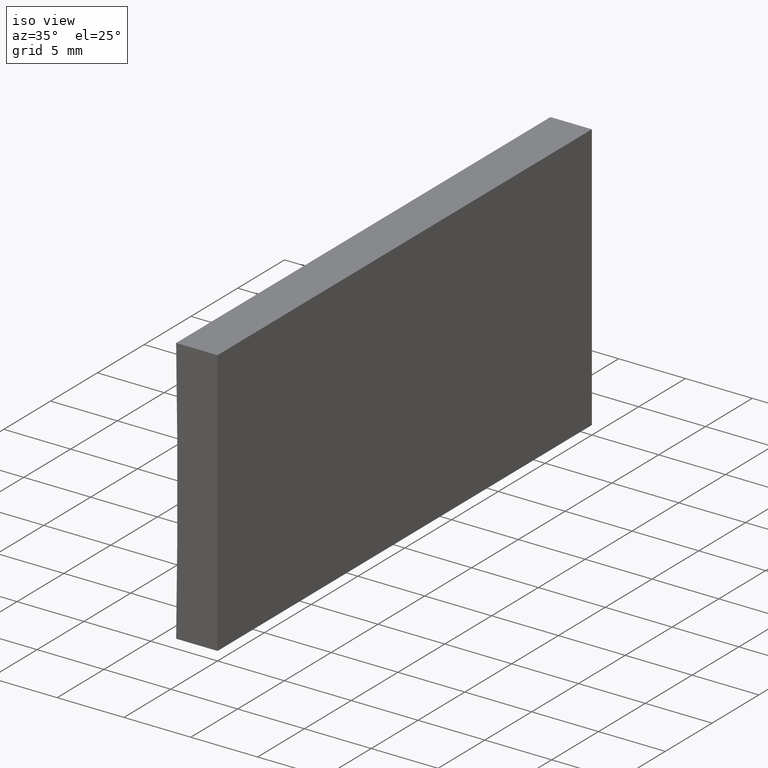
[diagram: clean part render]
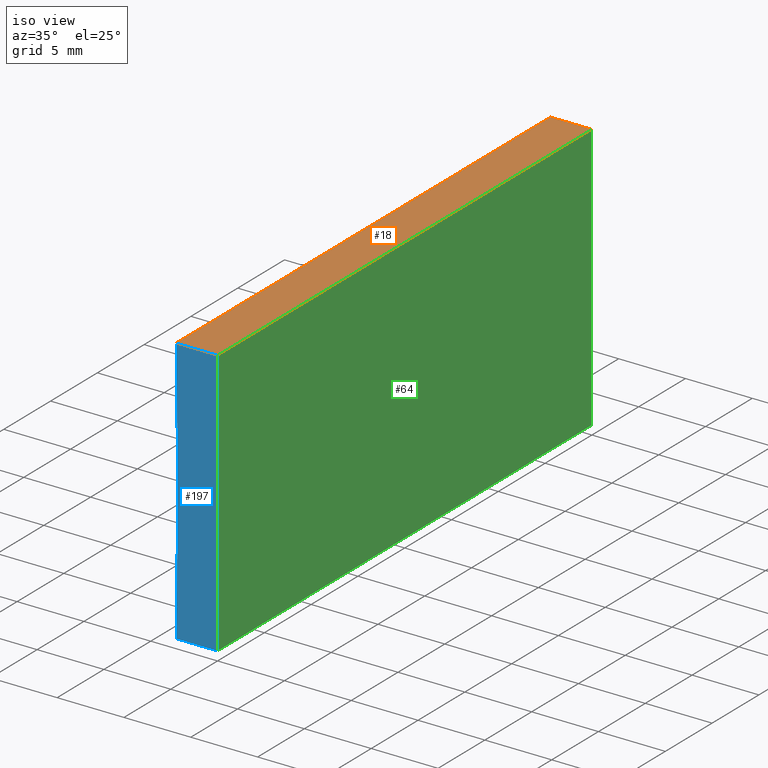
[diagram: same view with three faces highlighted in distinct colors, each labeled with its STEP entity id]
A machine part, iso view with three faces highlighted in distinct colors.
Their STEP definitions:

[orange] entity #18 — the highlighted planar face has unit normal (0, 0, -1).
#2 = LINE ( 'NONE', #131, #57 ) ;
#12 = VERTEX_POINT ( 'NONE', #170 ) ;
#17 = EDGE_CURVE ( 'NONE', #120, #93, #117, .T. ) ;
#18 = ADVANCED_FACE ( 'NONE', ( #121 ), #162, .F. ) ;
#25 = DIRECTION ( 'NONE',  ( -0.0000000000000000000, -1.000000000000000000, -0.0000000000000000000 ) ) ;
#28 = DIRECTION ( 'NONE',  ( 1.000000000000000000, -0.0000000000000000000, 1.120348000704784800E-015 ) ) ;
#33 = EDGE_CURVE ( 'NONE', #153, #93, #177, .T. ) ;
#38 = ORIENTED_EDGE ( 'NONE', *, *, #17, .F. ) ;
#57 = VECTOR ( 'NONE', #28, 1000.000000000000000 ) ;
#63 = VECTOR ( 'NONE', #76, 1000.000000000000000 ) ;
#66 = AXIS2_PLACEMENT_3D ( 'NONE', #110, #184, #137 ) ;
#76 = DIRECTION ( 'NONE',  ( 1.000000000000000000, -0.0000000000000000000, 1.120348000704784800E-015 ) ) ;
#80 = VECTOR ( 'NONE', #25, 1000.000000000000000 ) ;
#93 = VERTEX_POINT ( 'NONE', #105 ) ;
#94 = EDGE_CURVE ( 'NONE', #12, #153, #132, .T. ) ;
#96 = VECTOR ( 'NONE', #98, 1000.000000000000000 ) ;
#98 = DIRECTION ( 'NONE',  ( -0.0000000000000000000, -1.000000000000000000, -0.0000000000000000000 ) ) ;
#99 = EDGE_CURVE ( 'NONE', #12, #120, #2, .T. ) ;
#105 = CARTESIAN_POINT ( 'NONE',  ( 1.224646799147353300E-015, 0.0000000000000000000, 20.00000000000000000 ) ) ;
#108 = CARTESIAN_POINT ( 'NONE',  ( 1.224646799147353300E-015, 40.00000000000000000, 20.00000000000000000 ) ) ;
#110 = CARTESIAN_POINT ( 'NONE',  ( 1.224646799147353300E-015, 40.00000000000000000, 20.00000000000000000 ) ) ;
#117 = LINE ( 'NONE', #180, #96 ) ;
#120 = VERTEX_POINT ( 'NONE', #108 ) ;
#121 = FACE_OUTER_BOUND ( 'NONE', #186, .T. ) ;
#124 = CARTESIAN_POINT ( 'NONE',  ( -3.096758283828832300, 0.0000000000000000000, 19.99999999999999600 ) ) ;
#131 = CARTESIAN_POINT ( 'NONE',  ( 1.224646799147353300E-015, 40.00000000000000000, 20.00000000000000000 ) ) ;
#132 = LINE ( 'NONE', #173, #80 ) ;
#137 = DIRECTION ( 'NONE',  ( -1.000000000000000000, 0.0000000000000000000, -1.120348000704784800E-015 ) ) ;
#140 = ORIENTED_EDGE ( 'NONE', *, *, #94, .T. ) ;
#153 = VERTEX_POINT ( 'NONE', #124 ) ;
#157 = ORIENTED_EDGE ( 'NONE', *, *, #33, .T. ) ;
#162 = PLANE ( 'NONE',  #66 ) ;
#170 = CARTESIAN_POINT ( 'NONE',  ( -3.096758283828832300, 40.00000000000000000, 19.99999999999999600 ) ) ;
#171 = CARTESIAN_POINT ( 'NONE',  ( 1.224646799147353300E-015, 0.0000000000000000000, 20.00000000000000000 ) ) ;
#173 = CARTESIAN_POINT ( 'NONE',  ( -3.096758283828832300, 40.00000000000000000, 19.99999999999999600 ) ) ;
#177 = LINE ( 'NONE', #171, #63 ) ;
#180 = CARTESIAN_POINT ( 'NONE',  ( 1.224646799147353300E-015, 40.00000000000000000, 20.00000000000000000 ) ) ;
#184 = DIRECTION ( 'NONE',  ( 1.120348000704784800E-015, 0.0000000000000000000, -1.000000000000000000 ) ) ;
#186 = EDGE_LOOP ( 'NONE', ( #157, #38, #201, #140 ) ) ;
#201 = ORIENTED_EDGE ( 'NONE', *, *, #99, .F. ) ;

[blue] entity #197 — the highlighted planar face has unit normal (0, 1, 0).
#14 = LINE ( 'NONE', #71, #115 ) ;
#20 = CARTESIAN_POINT ( 'NONE',  ( -519.7999999999999500, 0.0000000000000000000, 10.00000000000006200 ) ) ;
#23 = CARTESIAN_POINT ( 'NONE',  ( -3.096758283828826600, 0.0000000000000000000, 5.204170427930421300E-014 ) ) ;
#33 = EDGE_CURVE ( 'NONE', #153, #93, #177, .T. ) ;
#39 = EDGE_CURVE ( 'NONE', #93, #82, #183, .T. ) ;
#53 = DIRECTION ( 'NONE',  ( -1.000000000000000000, 0.0000000000000000000, 1.120348000704784400E-015 ) ) ;
#59 = EDGE_LOOP ( 'NONE', ( #116, #106, #179, #187 ) ) ;
#61 = DIRECTION ( 'NONE',  ( 0.0000000000000000000, 1.000000000000000000, 0.0000000000000000000 ) ) ;
#63 = VECTOR ( 'NONE', #76, 1000.000000000000000 ) ;
#71 = CARTESIAN_POINT ( 'NONE',  ( 0.0000000000000000000, 0.0000000000000000000, 0.0000000000000000000 ) ) ;
#72 = CARTESIAN_POINT ( 'NONE',  ( 0.0000000000000000000, 0.0000000000000000000, 0.0000000000000000000 ) ) ;
#74 = PLANE ( 'NONE',  #97 ) ;
#76 = DIRECTION ( 'NONE',  ( 1.000000000000000000, -0.0000000000000000000, 1.120348000704784800E-015 ) ) ;
#78 = CARTESIAN_POINT ( 'NONE',  ( -519.7999999999999500, 0.0000000000000000000, 10.00000000000006200 ) ) ;
#82 = VERTEX_POINT ( 'NONE', #72 ) ;
#93 = VERTEX_POINT ( 'NONE', #105 ) ;
#97 = AXIS2_PLACEMENT_3D ( 'NONE', #20, #61, #146 ) ;
#105 = CARTESIAN_POINT ( 'NONE',  ( 1.224646799147353300E-015, 0.0000000000000000000, 20.00000000000000000 ) ) ;
#106 = ORIENTED_EDGE ( 'NONE', *, *, #39, .F. ) ;
#109 = CARTESIAN_POINT ( 'NONE',  ( 0.0000000000000000000, 0.0000000000000000000, 0.0000000000000000000 ) ) ;
#115 = VECTOR ( 'NONE', #53, 1000.000000000000000 ) ;
#116 = ORIENTED_EDGE ( 'NONE', *, *, #189, .F. ) ;
#123 = VERTEX_POINT ( 'NONE', #23 ) ;
#124 = CARTESIAN_POINT ( 'NONE',  ( -3.096758283828832300, 0.0000000000000000000, 19.99999999999999600 ) ) ;
#130 = DIRECTION ( 'NONE',  ( -6.123233995736766000E-017, -0.0000000000000000000, -1.000000000000000000 ) ) ;
#138 = FACE_OUTER_BOUND ( 'NONE', #59, .T. ) ;
#146 = DIRECTION ( 'NONE',  ( 0.0000000000000000000, -0.0000000000000000000, 1.000000000000000000 ) ) ;
#153 = VERTEX_POINT ( 'NONE', #124 ) ;
#155 = CIRCLE ( 'NONE', #198, 516.7999999999999500 ) ;
#160 = DIRECTION ( 'NONE',  ( 0.0000000000000000000, 0.0000000000000000000, 1.000000000000000000 ) ) ;
#161 = DIRECTION ( 'NONE',  ( -0.0000000000000000000, -1.000000000000000000, -0.0000000000000000000 ) ) ;
#171 = CARTESIAN_POINT ( 'NONE',  ( 1.224646799147353300E-015, 0.0000000000000000000, 20.00000000000000000 ) ) ;
#177 = LINE ( 'NONE', #171, #63 ) ;
#179 = ORIENTED_EDGE ( 'NONE', *, *, #33, .F. ) ;
#183 = LINE ( 'NONE', #109, #193 ) ;
#187 = ORIENTED_EDGE ( 'NONE', *, *, #192, .F. ) ;
#189 = EDGE_CURVE ( 'NONE', #82, #123, #14, .T. ) ;
#192 = EDGE_CURVE ( 'NONE', #123, #153, #155, .T. ) ;
#193 = VECTOR ( 'NONE', #130, 1000.000000000000000 ) ;
#197 = ADVANCED_FACE ( 'NONE', ( #138 ), #74, .F. ) ;
#198 = AXIS2_PLACEMENT_3D ( 'NONE', #78, #161, #160 ) ;

[green] entity #64 — the highlighted planar face has unit normal (-1, 0, 0).
#1 = ORIENTED_EDGE ( 'NONE', *, *, #39, .T. ) ;
#5 = CARTESIAN_POINT ( 'NONE',  ( 0.0000000000000000000, 40.00000000000000000, 0.0000000000000000000 ) ) ;
#17 = EDGE_CURVE ( 'NONE', #120, #93, #117, .T. ) ;
#19 = EDGE_CURVE ( 'NONE', #52, #82, #148, .T. ) ;
#21 = CARTESIAN_POINT ( 'NONE',  ( 0.0000000000000000000, 40.00000000000000000, 0.0000000000000000000 ) ) ;
#31 = ORIENTED_EDGE ( 'NONE', *, *, #181, .F. ) ;
#39 = EDGE_CURVE ( 'NONE', #93, #82, #183, .T. ) ;
#40 = DIRECTION ( 'NONE',  ( -0.0000000000000000000, -1.000000000000000000, -0.0000000000000000000 ) ) ;
#44 = ORIENTED_EDGE ( 'NONE', *, *, #19, .F. ) ;
#52 = VERTEX_POINT ( 'NONE', #5 ) ;
#62 = EDGE_LOOP ( 'NONE', ( #1, #44, #31, #86 ) ) ;
#64 = ADVANCED_FACE ( 'NONE', ( #69 ), #152, .F. ) ;
#69 = FACE_OUTER_BOUND ( 'NONE', #62, .T. ) ;
#70 = AXIS2_PLACEMENT_3D ( 'NONE', #87, #165, #89 ) ;
#72 = CARTESIAN_POINT ( 'NONE',  ( 0.0000000000000000000, 0.0000000000000000000, 0.0000000000000000000 ) ) ;
#82 = VERTEX_POINT ( 'NONE', #72 ) ;
#85 = VECTOR ( 'NONE', #107, 1000.000000000000000 ) ;
#86 = ORIENTED_EDGE ( 'NONE', *, *, #17, .T. ) ;
#87 = CARTESIAN_POINT ( 'NONE',  ( 0.0000000000000000000, 40.00000000000000000, 0.0000000000000000000 ) ) ;
#89 = DIRECTION ( 'NONE',  ( 6.123233995736766000E-017, 0.0000000000000000000, 1.000000000000000000 ) ) ;
#93 = VERTEX_POINT ( 'NONE', #105 ) ;
#96 = VECTOR ( 'NONE', #98, 1000.000000000000000 ) ;
#98 = DIRECTION ( 'NONE',  ( -0.0000000000000000000, -1.000000000000000000, -0.0000000000000000000 ) ) ;
#105 = CARTESIAN_POINT ( 'NONE',  ( 1.224646799147353300E-015, 0.0000000000000000000, 20.00000000000000000 ) ) ;
#107 = DIRECTION ( 'NONE',  ( -6.123233995736766000E-017, -0.0000000000000000000, -1.000000000000000000 ) ) ;
#108 = CARTESIAN_POINT ( 'NONE',  ( 1.224646799147353300E-015, 40.00000000000000000, 20.00000000000000000 ) ) ;
#109 = CARTESIAN_POINT ( 'NONE',  ( 0.0000000000000000000, 0.0000000000000000000, 0.0000000000000000000 ) ) ;
#117 = LINE ( 'NONE', #180, #96 ) ;
#120 = VERTEX_POINT ( 'NONE', #108 ) ;
#130 = DIRECTION ( 'NONE',  ( -6.123233995736766000E-017, -0.0000000000000000000, -1.000000000000000000 ) ) ;
#135 = VECTOR ( 'NONE', #40, 1000.000000000000000 ) ;
#141 = CARTESIAN_POINT ( 'NONE',  ( 0.0000000000000000000, 40.00000000000000000, 0.0000000000000000000 ) ) ;
#148 = LINE ( 'NONE', #21, #135 ) ;
#152 = PLANE ( 'NONE',  #70 ) ;
#165 = DIRECTION ( 'NONE',  ( -1.000000000000000000, 0.0000000000000000000, 6.123233995736766000E-017 ) ) ;
#168 = LINE ( 'NONE', #141, #85 ) ;
#180 = CARTESIAN_POINT ( 'NONE',  ( 1.224646799147353300E-015, 40.00000000000000000, 20.00000000000000000 ) ) ;
#181 = EDGE_CURVE ( 'NONE', #120, #52, #168, .T. ) ;
#183 = LINE ( 'NONE', #109, #193 ) ;
#193 = VECTOR ( 'NONE', #130, 1000.000000000000000 ) ;